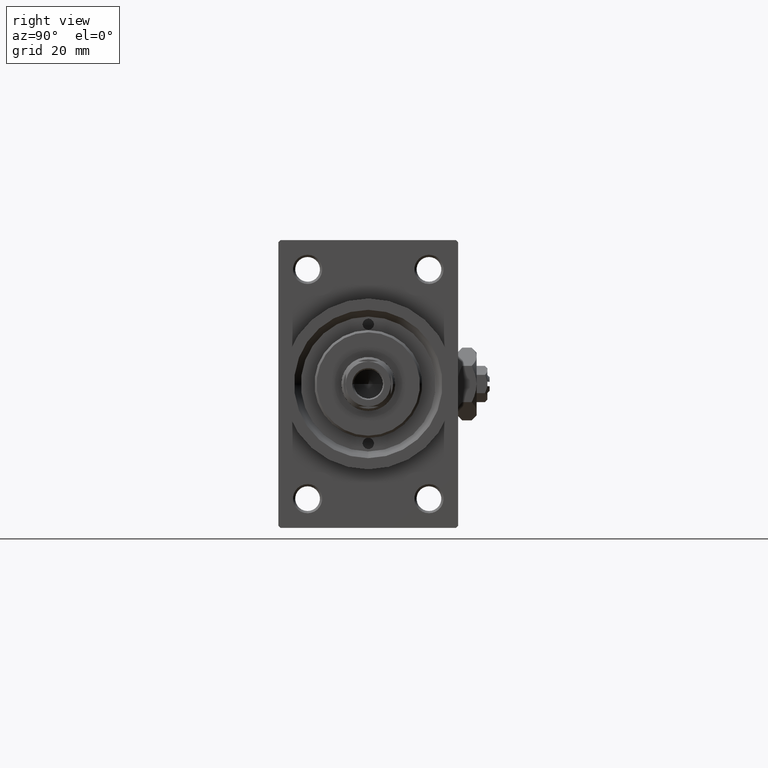
[diagram: clean part render]
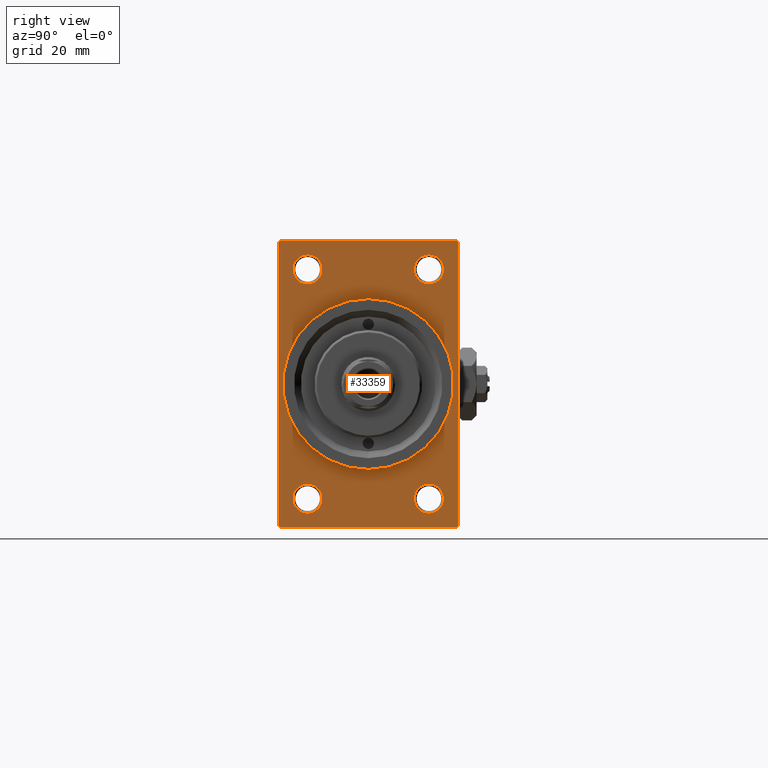
[diagram: same view with one face highlighted and labeled with its STEP entity id]
A machine part, right view. The second image highlights one B-rep face of the part: STEP entity #33359.
In plain terms, the highlighted planar face has unit normal (-1, 0, 0).
Its self-contained STEP definition (entity closure, byte-faithful):
#34 = CARTESIAN_POINT ( 'NONE',  ( 109.0000000000000142, 13.49999999999999822, 25.50000000000000355 ) ) ;
#653 = CARTESIAN_POINT ( 'NONE',  ( 109.0000000000000142, -13.50000000000000178, 22.25000000000000000 ) ) ;
#703 = ORIENTED_EDGE ( 'NONE', *, *, #3965, .F. ) ;
#887 = DIRECTION ( 'NONE',  ( 0.000000000000000000, 0.000000000000000000, 1.000000000000000000 ) ) ;
#989 = DIRECTION ( 'NONE',  ( 0.000000000000000000, 0.000000000000000000, -1.000000000000000000 ) ) ;
#1219 = EDGE_CURVE ( 'NONE', #44748, #48367, #37160, .T. ) ;
#1360 = CARTESIAN_POINT ( 'NONE',  ( 109.0000000000000142, 0.000000000000000000, 19.00000000000000000 ) ) ;
#1966 = CARTESIAN_POINT ( 'NONE',  ( 109.0000000000000142, 20.00000000000000000, 32.00000000000000000 ) ) ;
#2282 = CARTESIAN_POINT ( 'NONE',  ( 109.0000000000000142, 20.00000000000000000, 31.49999999999998579 ) ) ;
#2648 = DIRECTION ( 'NONE',  ( 0.000000000000000000, 0.000000000000000000, -1.000000000000000000 ) ) ;
#2766 = CARTESIAN_POINT ( 'NONE',  ( 109.0000000000000142, -20.00000000000000000, 31.49999999999997868 ) ) ;
#2967 = CARTESIAN_POINT ( 'NONE',  ( 109.0000000000000142, 20.00000000000000000, -32.00000000000000000 ) ) ;
#3008 = AXIS2_PLACEMENT_3D ( 'NONE', #20604, #13632, #25328 ) ;
#3157 = CARTESIAN_POINT ( 'NONE',  ( 109.0000000000000142, 19.49999999999998579, 32.00000000000000000 ) ) ;
#3181 = EDGE_CURVE ( 'NONE', #5941, #22606, #38029, .T. ) ;
#3220 = DIRECTION ( 'NONE',  ( 0.000000000000000000, -1.000000000000000000, 0.000000000000000000 ) ) ;
#3281 = LINE ( 'NONE', #6774, #22157 ) ;
#3296 = ORIENTED_EDGE ( 'NONE', *, *, #16210, .T. ) ;
#3408 = AXIS2_PLACEMENT_3D ( 'NONE', #47194, #5597, #35476 ) ;
#3621 = DIRECTION ( 'NONE',  ( -1.000000000000000000, -0.000000000000000000, -0.000000000000000000 ) ) ;
#3646 = ORIENTED_EDGE ( 'NONE', *, *, #26183, .F. ) ;
#3676 = LINE ( 'NONE', #37064, #45440 ) ;
#3965 = EDGE_CURVE ( 'NONE', #46506, #24985, #5453, .T. ) ;
#4521 = DIRECTION ( 'NONE',  ( -1.000000000000000000, -0.000000000000000000, -0.000000000000000000 ) ) ;
#4571 = EDGE_CURVE ( 'NONE', #30062, #24568, #3281, .T. ) ;
#4810 = CIRCLE ( 'NONE', #33509, 3.250000000000002665 ) ;
#4861 = EDGE_CURVE ( 'NONE', #24271, #24568, #24649, .T. ) ;
#5205 = CARTESIAN_POINT ( 'NONE',  ( 109.0000000000000142, -13.50000000000000533, -22.24999999999999289 ) ) ;
#5453 = CIRCLE ( 'NONE', #47596, 19.00000000000000000 ) ;
#5468 = DIRECTION ( 'NONE',  ( -1.000000000000000000, -0.000000000000000000, -0.000000000000000000 ) ) ;
#5597 = DIRECTION ( 'NONE',  ( -1.000000000000000000, -0.000000000000000000, -0.000000000000000000 ) ) ;
#5661 = FACE_BOUND ( 'NONE', #17861, .T. ) ;
#5941 = VERTEX_POINT ( 'NONE', #19786 ) ;
#6183 = ORIENTED_EDGE ( 'NONE', *, *, #10026, .T. ) ;
#6320 = EDGE_LOOP ( 'NONE', ( #42481, #14398 ) ) ;
#6368 = CARTESIAN_POINT ( 'NONE',  ( 109.0000000000000142, 13.49999999999999822, -28.75000000000000000 ) ) ;
#6774 = CARTESIAN_POINT ( 'NONE',  ( 109.0000000000000142, 20.00000000000000000, -31.49999999999998579 ) ) ;
#7146 = CIRCLE ( 'NONE', #35783, 3.249999999999961364 ) ;
#7997 = ORIENTED_EDGE ( 'NONE', *, *, #42457, .T. ) ;
#8031 = CARTESIAN_POINT ( 'NONE',  ( 109.0000000000000142, 13.49999999999999822, -25.50000000000000000 ) ) ;
#8264 = ORIENTED_EDGE ( 'NONE', *, *, #27371, .T. ) ;
#9715 = DIRECTION ( 'NONE',  ( 0.000000000000000000, 0.000000000000000000, 1.000000000000000000 ) ) ;
#10026 = EDGE_CURVE ( 'NONE', #48367, #44748, #7146, .T. ) ;
#10068 = ORIENTED_EDGE ( 'NONE', *, *, #20569, .T. ) ;
#10142 = FACE_OUTER_BOUND ( 'NONE', #40420, .T. ) ;
#11204 = CIRCLE ( 'NONE', #33468, 3.250000000000002665 ) ;
#11500 = VERTEX_POINT ( 'NONE', #13144 ) ;
#11974 = EDGE_CURVE ( 'NONE', #22606, #5941, #4810, .T. ) ;
#12094 = EDGE_CURVE ( 'NONE', #30813, #40298, #11204, .T. ) ;
#12892 = FACE_BOUND ( 'NONE', #6320, .T. ) ;
#12976 = ORIENTED_EDGE ( 'NONE', *, *, #40275, .T. ) ;
#13144 = CARTESIAN_POINT ( 'NONE',  ( 109.0000000000000142, 19.49999999999998579, 32.00000000000000000 ) ) ;
#13459 = ORIENTED_EDGE ( 'NONE', *, *, #28341, .F. ) ;
#13632 = DIRECTION ( 'NONE',  ( -1.000000000000000000, 0.000000000000000000, -0.000000000000000000 ) ) ;
#14329 = CIRCLE ( 'NONE', #17517, 3.250000000000002665 ) ;
#14398 = ORIENTED_EDGE ( 'NONE', *, *, #3181, .T. ) ;
#15041 = VECTOR ( 'NONE', #989, 1000.000000000000000 ) ;
#15175 = CARTESIAN_POINT ( 'NONE',  ( 109.0000000000000142, 13.49999999999999822, 28.74999999999996803 ) ) ;
#15560 = DIRECTION ( 'NONE',  ( 0.000000000000000000, 0.000000000000000000, 1.000000000000000000 ) ) ;
#16210 = EDGE_CURVE ( 'NONE', #11500, #47091, #18097, .T. ) ;
#16323 = EDGE_CURVE ( 'NONE', #43479, #34793, #37578, .T. ) ;
#16442 = CARTESIAN_POINT ( 'NONE',  ( 109.0000000000000142, -20.00000000000000000, -31.49999999999997868 ) ) ;
#17136 = ORIENTED_EDGE ( 'NONE', *, *, #25923, .T. ) ;
#17247 = CARTESIAN_POINT ( 'NONE',  ( 109.0000000000000142, -13.50000000000000533, -25.49999999999999645 ) ) ;
#17263 = VECTOR ( 'NONE', #37078, 1000.000000000000114 ) ;
#17394 = DIRECTION ( 'NONE',  ( 0.000000000000000000, 0.7071067811865426878, -0.7071067811865524577 ) ) ;
#17503 = DIRECTION ( 'NONE',  ( -1.000000000000000000, -0.000000000000000000, -0.000000000000000000 ) ) ;
#17517 = AXIS2_PLACEMENT_3D ( 'NONE', #35017, #23799, #887 ) ;
#17610 = LINE ( 'NONE', #3157, #33568 ) ;
#17861 = EDGE_LOOP ( 'NONE', ( #703, #3646 ) ) ;
#18097 = LINE ( 'NONE', #18355, #41560 ) ;
#18146 = DIRECTION ( 'NONE',  ( 1.000000000000000000, 0.000000000000000000, 0.000000000000000000 ) ) ;
#18355 = CARTESIAN_POINT ( 'NONE',  ( 109.0000000000000142, 20.00000000000000000, 32.00000000000000000 ) ) ;
#19109 = VERTEX_POINT ( 'NONE', #2766 ) ;
#19786 = CARTESIAN_POINT ( 'NONE',  ( 109.0000000000000142, 13.49999999999999822, -22.24999999999999645 ) ) ;
#20186 = CIRCLE ( 'NONE', #21801, 3.250000000000002665 ) ;
#20440 = ORIENTED_EDGE ( 'NONE', *, *, #12094, .T. ) ;
#20490 = DIRECTION ( 'NONE',  ( 0.000000000000000000, 0.000000000000000000, 1.000000000000000000 ) ) ;
#20569 = EDGE_CURVE ( 'NONE', #40298, #30813, #20186, .T. ) ;
#20604 = CARTESIAN_POINT ( 'NONE',  ( 109.0000000000000142, 0.000000000000000000, 0.000000000000000000 ) ) ;
#21095 = PLANE ( 'NONE',  #3008 ) ;
#21177 = CIRCLE ( 'NONE', #33921, 19.00000000000000000 ) ;
#21379 = LINE ( 'NONE', #42883, #42665 ) ;
#21801 = AXIS2_PLACEMENT_3D ( 'NONE', #17247, #17503, #20490 ) ;
#22157 = VECTOR ( 'NONE', #40893, 1000.000000000000114 ) ;
#22606 = VERTEX_POINT ( 'NONE', #6368 ) ;
#22848 = CARTESIAN_POINT ( 'NONE',  ( 109.0000000000000142, -13.50000000000000533, -28.74999999999999645 ) ) ;
#23799 = DIRECTION ( 'NONE',  ( -1.000000000000000000, -0.000000000000000000, -0.000000000000000000 ) ) ;
#23869 = EDGE_LOOP ( 'NONE', ( #43200, #6183 ) ) ;
#24271 = VERTEX_POINT ( 'NONE', #2282 ) ;
#24357 = CARTESIAN_POINT ( 'NONE',  ( 109.0000000000000142, -19.49999999999998579, 31.99999999999999289 ) ) ;
#24433 = DIRECTION ( 'NONE',  ( 0.000000000000000000, 0.000000000000000000, 1.000000000000000000 ) ) ;
#24568 = VERTEX_POINT ( 'NONE', #37597 ) ;
#24649 = LINE ( 'NONE', #1966, #15041 ) ;
#24985 = VERTEX_POINT ( 'NONE', #44523 ) ;
#25328 = DIRECTION ( 'NONE',  ( -0.000000000000000000, 0.000000000000000000, 1.000000000000000000 ) ) ;
#25483 = VERTEX_POINT ( 'NONE', #16442 ) ;
#25923 = EDGE_CURVE ( 'NONE', #25483, #41219, #21379, .T. ) ;
#26183 = EDGE_CURVE ( 'NONE', #24985, #46506, #21177, .T. ) ;
#27371 = EDGE_CURVE ( 'NONE', #47091, #19109, #48557, .T. ) ;
#27678 = DIRECTION ( 'NONE',  ( 0.000000000000000000, 0.000000000000000000, 1.000000000000000000 ) ) ;
#28314 = FACE_BOUND ( 'NONE', #23869, .T. ) ;
#28341 = EDGE_CURVE ( 'NONE', #30062, #41219, #37089, .T. ) ;
#28669 = CARTESIAN_POINT ( 'NONE',  ( 109.0000000000000142, -13.50000000000000178, 28.75000000000000355 ) ) ;
#29087 = EDGE_LOOP ( 'NONE', ( #10068, #20440 ) ) ;
#29859 = CARTESIAN_POINT ( 'NONE',  ( 109.0000000000000142, -20.00000000000000000, 31.49999999999997868 ) ) ;
#30062 = VERTEX_POINT ( 'NONE', #38821 ) ;
#30282 = ORIENTED_EDGE ( 'NONE', *, *, #4571, .T. ) ;
#30813 = VERTEX_POINT ( 'NONE', #5205 ) ;
#31315 = ORIENTED_EDGE ( 'NONE', *, *, #38086, .T. ) ;
#32164 = DIRECTION ( 'NONE',  ( -1.000000000000000000, -0.000000000000000000, -0.000000000000000000 ) ) ;
#32298 = CARTESIAN_POINT ( 'NONE',  ( 109.0000000000000142, 0.000000000000000000, 0.000000000000000000 ) ) ;
#32310 = FACE_BOUND ( 'NONE', #29087, .T. ) ;
#32817 = FACE_BOUND ( 'NONE', #45259, .T. ) ;
#32978 = CARTESIAN_POINT ( 'NONE',  ( 109.0000000000000142, 13.49999999999999822, 22.25000000000004263 ) ) ;
#33359 = ADVANCED_FACE ( 'NONE', ( #32817, #32310, #12892, #28314, #5661, #10142 ), #21095, .F. ) ;
#33468 = AXIS2_PLACEMENT_3D ( 'NONE', #43379, #4521, #27678 ) ;
#33509 = AXIS2_PLACEMENT_3D ( 'NONE', #8031, #37447, #45407 ) ;
#33568 = VECTOR ( 'NONE', #48248, 1000.000000000000114 ) ;
#33595 = DIRECTION ( 'NONE',  ( 0.000000000000000000, 0.000000000000000000, -1.000000000000000000 ) ) ;
#33921 = AXIS2_PLACEMENT_3D ( 'NONE', #38293, #18146, #49271 ) ;
#34785 = VECTOR ( 'NONE', #3220, 1000.000000000000000 ) ;
#34793 = VERTEX_POINT ( 'NONE', #28669 ) ;
#35017 = CARTESIAN_POINT ( 'NONE',  ( 109.0000000000000142, -13.50000000000000178, 25.50000000000000355 ) ) ;
#35476 = DIRECTION ( 'NONE',  ( 0.000000000000000000, 0.000000000000000000, 1.000000000000000000 ) ) ;
#35781 = DIRECTION ( 'NONE',  ( 1.000000000000000000, 0.000000000000000000, 0.000000000000000000 ) ) ;
#35783 = AXIS2_PLACEMENT_3D ( 'NONE', #34, #5468, #9715 ) ;
#37064 = CARTESIAN_POINT ( 'NONE',  ( 109.0000000000000142, -20.00000000000000000, 31.99999999999999289 ) ) ;
#37078 = DIRECTION ( 'NONE',  ( -0.000000000000000000, -0.7071067811865474617, -0.7071067811865474617 ) ) ;
#37089 = LINE ( 'NONE', #2967, #34785 ) ;
#37160 = CIRCLE ( 'NONE', #41148, 3.249999999999961364 ) ;
#37447 = DIRECTION ( 'NONE',  ( -1.000000000000000000, -0.000000000000000000, -0.000000000000000000 ) ) ;
#37578 = CIRCLE ( 'NONE', #3408, 3.250000000000002665 ) ;
#37597 = CARTESIAN_POINT ( 'NONE',  ( 109.0000000000000142, 20.00000000000000000, -31.49999999999998579 ) ) ;
#37741 = CARTESIAN_POINT ( 'NONE',  ( 109.0000000000000142, 13.49999999999999822, 25.50000000000000355 ) ) ;
#38029 = CIRCLE ( 'NONE', #40412, 3.250000000000002665 ) ;
#38086 = EDGE_CURVE ( 'NONE', #34793, #43479, #14329, .T. ) ;
#38293 = CARTESIAN_POINT ( 'NONE',  ( 109.0000000000000142, 0.000000000000000000, 0.000000000000000000 ) ) ;
#38821 = CARTESIAN_POINT ( 'NONE',  ( 109.0000000000000142, 19.49999999999998579, -32.00000000000000000 ) ) ;
#40275 = EDGE_CURVE ( 'NONE', #19109, #25483, #3676, .T. ) ;
#40298 = VERTEX_POINT ( 'NONE', #22848 ) ;
#40370 = ORIENTED_EDGE ( 'NONE', *, *, #16323, .T. ) ;
#40412 = AXIS2_PLACEMENT_3D ( 'NONE', #43377, #32164, #24433 ) ;
#40420 = EDGE_LOOP ( 'NONE', ( #12976, #17136, #13459, #30282, #44676, #7997, #3296, #8264 ) ) ;
#40893 = DIRECTION ( 'NONE',  ( -0.000000000000000000, 0.7071067811865474617, 0.7071067811865474617 ) ) ;
#41148 = AXIS2_PLACEMENT_3D ( 'NONE', #37741, #3621, #15560 ) ;
#41219 = VERTEX_POINT ( 'NONE', #43562 ) ;
#41560 = VECTOR ( 'NONE', #49226, 1000.000000000000000 ) ;
#42457 = EDGE_CURVE ( 'NONE', #24271, #11500, #17610, .T. ) ;
#42481 = ORIENTED_EDGE ( 'NONE', *, *, #11974, .T. ) ;
#42665 = VECTOR ( 'NONE', #17394, 1000.000000000000000 ) ;
#42883 = CARTESIAN_POINT ( 'NONE',  ( 109.0000000000000142, -19.49999999999998579, -32.00000000000000000 ) ) ;
#43200 = ORIENTED_EDGE ( 'NONE', *, *, #1219, .T. ) ;
#43377 = CARTESIAN_POINT ( 'NONE',  ( 109.0000000000000142, 13.49999999999999822, -25.50000000000000000 ) ) ;
#43379 = CARTESIAN_POINT ( 'NONE',  ( 109.0000000000000142, -13.50000000000000533, -25.49999999999999645 ) ) ;
#43479 = VERTEX_POINT ( 'NONE', #653 ) ;
#43562 = CARTESIAN_POINT ( 'NONE',  ( 109.0000000000000142, -19.49999999999998579, -32.00000000000000000 ) ) ;
#44523 = CARTESIAN_POINT ( 'NONE',  ( 109.0000000000000142, 2.326828918379970970E-15, -19.00000000000000000 ) ) ;
#44676 = ORIENTED_EDGE ( 'NONE', *, *, #4861, .F. ) ;
#44748 = VERTEX_POINT ( 'NONE', #32978 ) ;
#45259 = EDGE_LOOP ( 'NONE', ( #40370, #31315 ) ) ;
#45407 = DIRECTION ( 'NONE',  ( 0.000000000000000000, 0.000000000000000000, 1.000000000000000000 ) ) ;
#45440 = VECTOR ( 'NONE', #33595, 1000.000000000000000 ) ;
#46506 = VERTEX_POINT ( 'NONE', #1360 ) ;
#47091 = VERTEX_POINT ( 'NONE', #24357 ) ;
#47194 = CARTESIAN_POINT ( 'NONE',  ( 109.0000000000000142, -13.50000000000000178, 25.50000000000000355 ) ) ;
#47596 = AXIS2_PLACEMENT_3D ( 'NONE', #32298, #35781, #2648 ) ;
#48248 = DIRECTION ( 'NONE',  ( 0.000000000000000000, -0.7071067811865474617, 0.7071067811865474617 ) ) ;
#48367 = VERTEX_POINT ( 'NONE', #15175 ) ;
#48557 = LINE ( 'NONE', #29859, #17263 ) ;
#49226 = DIRECTION ( 'NONE',  ( 0.000000000000000000, -1.000000000000000000, -1.734723475976807094E-16 ) ) ;
#49271 = DIRECTION ( 'NONE',  ( 0.000000000000000000, 0.000000000000000000, -1.000000000000000000 ) ) ;